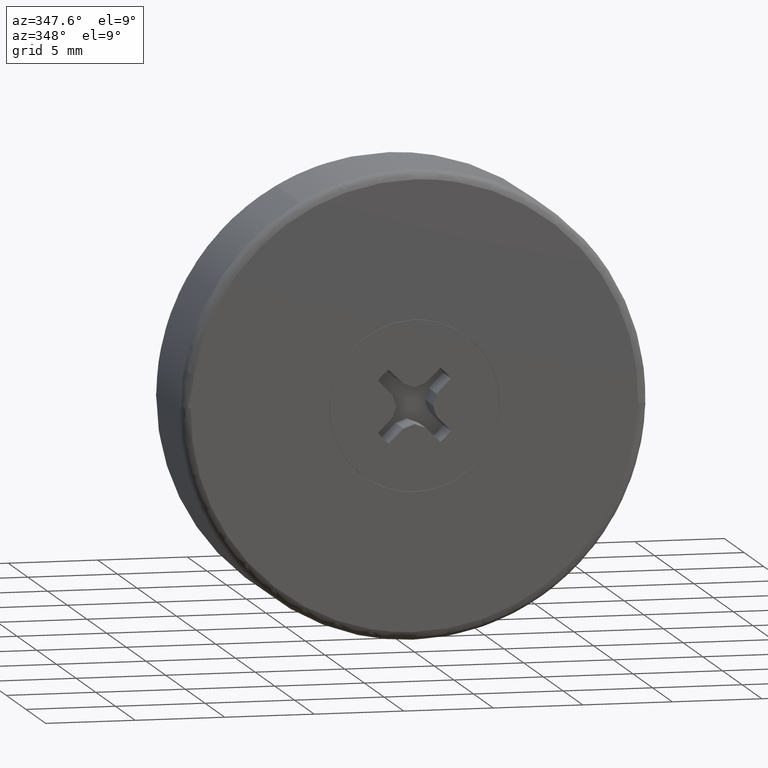
[diagram: clean part render]
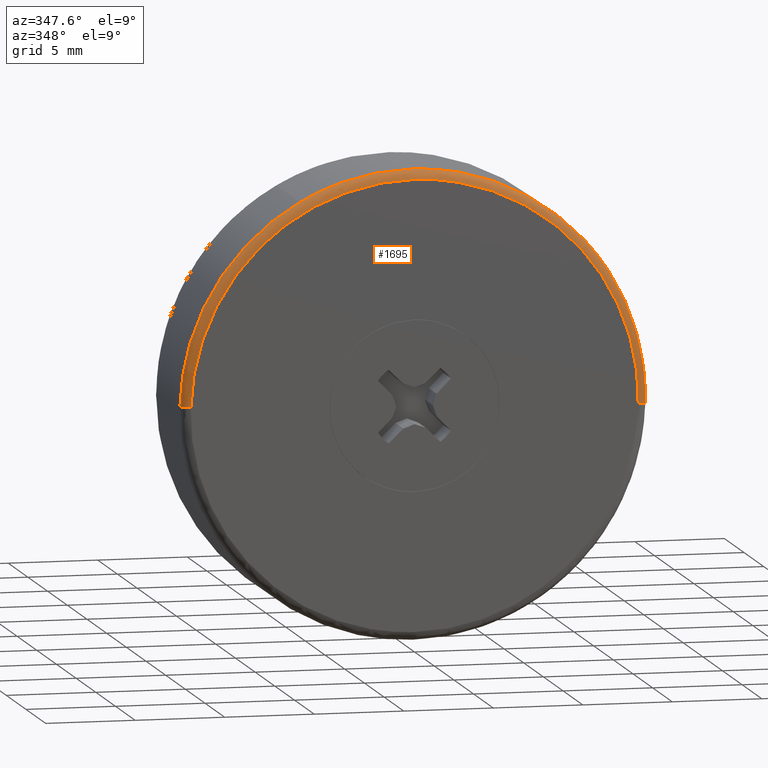
[diagram: same view with one face highlighted and labeled with its STEP entity id]
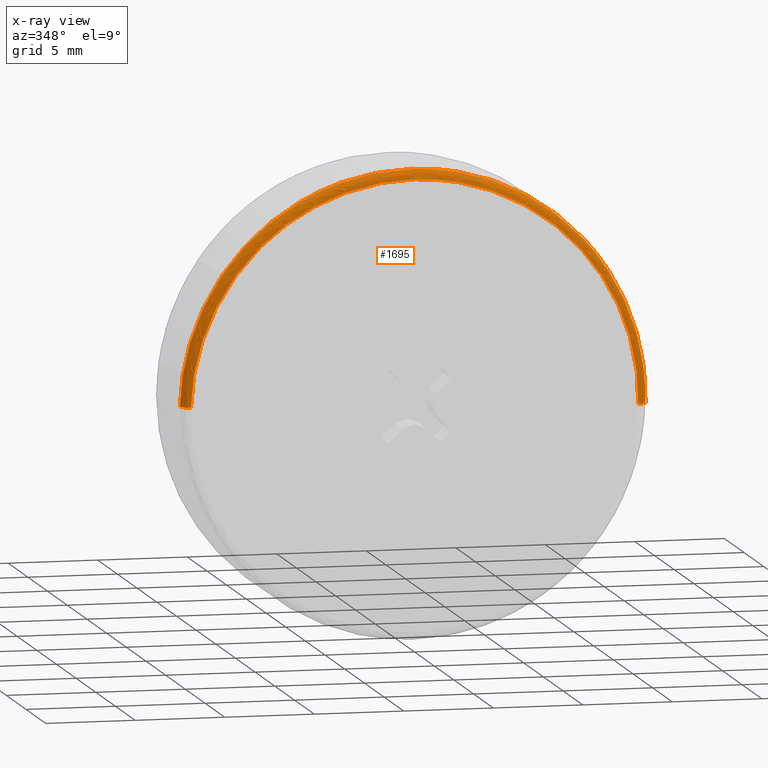
[diagram: x-ray of the same camera — body ghosted, the highlighted face saturated]
A machine part, auxiliary view. The second image highlights one B-rep face of the part: STEP entity #1695.
The next image is the same camera in x-ray: the body ghosted, the highlighted face saturated — about 0% of this face is hidden behind the body in this view.
In plain terms, the highlighted face is a freeform B-spline surface patch.
Its self-contained STEP definition (entity closure, byte-faithful):
#1328=CARTESIAN_POINT('',(-6.294854510387270,0.499999999997908,11.374304668552330));
#1329=VERTEX_POINT('',#1328);
#1330=CARTESIAN_POINT('',(-12.995894460682891,0.499999999983818,0.326691240763544));
#1331=VERTEX_POINT('',#1330);
#1332=CARTESIAN_POINT('',(-6.294854510387270,0.499999999997908,11.374304668552334));
#1333=CARTESIAN_POINT('',(-12.808801748854281,0.499999999993321,7.769306266508861));
#1334=CARTESIAN_POINT('',(-12.995894460682898,0.499999999983819,0.326691240763544));
#1342=(BOUNDED_CURVE()B_SPLINE_CURVE(2,(#1332,#1333,#1334),.UNSPECIFIED.,.F.,.U.)B_SPLINE_CURVE_WITH_KNOTS((3,3),(0.582484261791916,0.745579891769803),.UNSPECIFIED.)CURVE()GEOMETRIC_REPRESENTATION_ITEM()RATIONAL_B_SPLINE_CURVE((0.870495159113431,0.805504439765902,0.989826157681565))REPRESENTATION_ITEM(''));
#1343=EDGE_CURVE('',#1329,#1331,#1342,.T.);
#1414=CARTESIAN_POINT('',(9.584605856251752,0.500000000000005,8.782672177663475));
#1415=VERTEX_POINT('',#1414);
#1421=CARTESIAN_POINT('',(12.995894460682891,0.499999999983818,-0.326691240763541));
#1422=VERTEX_POINT('',#1421);
#1423=CARTESIAN_POINT('',(12.995894460682900,0.499999999983818,-0.326691240763541));
#1424=CARTESIAN_POINT('',(13.0,0.500000000000000,-0.163371417604090));
#1425=CARTESIAN_POINT('',(13.0,0.500000000000000,-1.904718E-016));
#1426=CARTESIAN_POINT('',(12.999999999999998,0.500000000000000,5.055422700038899));
#1427=CARTESIAN_POINT('',(9.584605856251752,0.500000000000005,8.782672177663475));
#1435=(BOUNDED_CURVE()B_SPLINE_CURVE(2,(#1423,#1424,#1425,#1426,#1427),.UNSPECIFIED.,.F.,.U.)B_SPLINE_CURVE_WITH_KNOTS((3,2,3),(0.245579891769803,0.250000000000000,0.368415192661570),.UNSPECIFIED.)CURVE()GEOMETRIC_REPRESENTATION_ITEM()RATIONAL_B_SPLINE_CURVE((0.989826157681567,0.994821521091815,1.0,0.861267972259750,0.853959782865036))REPRESENTATION_ITEM(''));
#1436=EDGE_CURVE('',#1422,#1415,#1435,.T.);
#1485=CARTESIAN_POINT('',(0.0,0.500000000000000,13.0));
#1486=VERTEX_POINT('',#1485);
#1487=CARTESIAN_POINT('',(0.0,0.500000000000000,13.0));
#1488=CARTESIAN_POINT('',(-3.357351512087067,0.500000000000000,13.0));
#1489=CARTESIAN_POINT('',(-6.294854510387270,0.499999999997908,11.374304668552334));
#1497=(BOUNDED_CURVE()B_SPLINE_CURVE(2,(#1487,#1488,#1489),.UNSPECIFIED.,.F.,.U.)B_SPLINE_CURVE_WITH_KNOTS((3,3),(0.500000000000000,0.582484261791916),.UNSPECIFIED.)CURVE()GEOMETRIC_REPRESENTATION_ITEM()RATIONAL_B_SPLINE_CURVE((1.0,0.903363676249257,0.870495159113431))REPRESENTATION_ITEM(''));
#1498=EDGE_CURVE('',#1486,#1329,#1497,.T.);
#1500=CARTESIAN_POINT('',(9.584605856251752,0.500000000000005,8.782672177663475));
#1501=CARTESIAN_POINT('',(5.720137745613223,0.500000000000000,13.000000000000004));
#1502=CARTESIAN_POINT('',(0.0,0.500000000000000,13.0));
#1510=(BOUNDED_CURVE()B_SPLINE_CURVE(2,(#1500,#1501,#1502),.UNSPECIFIED.,.F.,.U.)B_SPLINE_CURVE_WITH_KNOTS((3,3),(0.368415192661570,0.500000000000000),.UNSPECIFIED.)CURVE()GEOMETRIC_REPRESENTATION_ITEM()RATIONAL_B_SPLINE_CURVE((0.853959782865036,0.845838808926797,1.0))REPRESENTATION_ITEM(''));
#1511=EDGE_CURVE('',#1415,#1486,#1510,.T.);
#1569=CARTESIAN_POINT('',(-12.496052366380470,-1.054353E-015,0.314126193058411));
#1570=VERTEX_POINT('',#1569);
#1588=CARTESIAN_POINT('',(-12.995894460682900,0.499999999983819,0.326691240763544));
#1589=CARTESIAN_POINT('',(-12.995894460650545,6.790697E-010,0.326691240762575));
#1590=CARTESIAN_POINT('',(-12.496052366380475,-1.054353E-015,0.314126193058411));
#1598=(BOUNDED_CURVE()B_SPLINE_CURVE(2,(#1588,#1589,#1590),.UNSPECIFIED.,.F.,.U.)B_SPLINE_CURVE_WITH_KNOTS((3,3),(-1.723441281918127,-0.263586880333454),.UNSPECIFIED.)CURVE()GEOMETRIC_REPRESENTATION_ITEM()RATIONAL_B_SPLINE_CURVE((0.883897567115177,0.626638727497196,0.888510408558263))REPRESENTATION_ITEM(''));
#1599=EDGE_CURVE('',#1331,#1570,#1598,.T.);
#1603=CARTESIAN_POINT('',(12.496052366380470,-1.062163E-015,-0.314126193058408));
#1604=VERTEX_POINT('',#1603);
#1605=CARTESIAN_POINT('',(12.995894460682898,0.499999999983818,-0.326691240763541));
#1606=CARTESIAN_POINT('',(12.995894460650543,6.790686E-010,-0.326691240762573));
#1607=CARTESIAN_POINT('',(12.496052366380464,-1.062163E-015,-0.314126193058408));
#1615=(BOUNDED_CURVE()B_SPLINE_CURVE(2,(#1605,#1606,#1607),.UNSPECIFIED.,.F.,.U.)B_SPLINE_CURVE_WITH_KNOTS((3,3),(-1.723441281918127,-0.263586880333452),.UNSPECIFIED.)CURVE()GEOMETRIC_REPRESENTATION_ITEM()RATIONAL_B_SPLINE_CURVE((0.883897567115177,0.626638727497196,0.888510408558263))REPRESENTATION_ITEM(''));
#1616=EDGE_CURVE('',#1422,#1604,#1615,.T.);
#1634=CARTESIAN_POINT('',(12.994677997316831,0.534862113265929,-0.326660661265561));
#1635=CARTESIAN_POINT('',(13.321338658582397,0.534862113265929,12.668017336051275));
#1636=CARTESIAN_POINT('',(0.326660661265561,0.534862113265929,12.994677997316831));
#1637=CARTESIAN_POINT('',(-12.668017336051273,0.534862113265929,13.321338658582397));
#1638=CARTESIAN_POINT('',(-12.994677997316831,0.534862113265929,0.326660661265562));
#1639=CARTESIAN_POINT('',(13.034751864035522,-0.038668351976753,-0.327668039501828));
#1640=CARTESIAN_POINT('',(13.362419903537353,-0.038668351976753,12.707083824533695));
#1641=CARTESIAN_POINT('',(0.327668039501828,-0.038668351976753,13.034751864035522));
#1642=CARTESIAN_POINT('',(-12.707083824533692,-0.038668351976753,13.362419903537353));
#1643=CARTESIAN_POINT('',(-13.034751864035522,-0.038668351976753,0.327668039501829));
#1644=CARTESIAN_POINT('',(12.461387591115720,0.001203855233517,-0.313254788740500));
#1645=CARTESIAN_POINT('',(12.774642379856211,0.001203855233517,12.148132802375216));
#1646=CARTESIAN_POINT('',(0.313254788740501,0.001203855233517,12.461387591115720));
#1647=CARTESIAN_POINT('',(-12.148132802375212,0.001203855233517,12.774642379856214));
#1648=CARTESIAN_POINT('',(-12.461387591115720,0.001203855233517,0.313254788740502));
#1656=(BOUNDED_SURFACE()B_SPLINE_SURFACE(2,2,((#1634,#1639,#1644),(#1635,#1640,#1645),(#1636,#1641,#1646),(#1637,#1642,#1647),(#1638,#1643,#1648)),.UNSPECIFIED.,.F.,.F.,.U.)B_SPLINE_SURFACE_WITH_KNOTS((3,2,3),(3,3),(0.0,21.537089104185160,43.074178208370313),(0.0,0.911185718938869),.UNSPECIFIED.)GEOMETRIC_REPRESENTATION_ITEM()RATIONAL_B_SPLINE_SURFACE(((0.910892958713044,0.599412743202372,0.915966991455113),(0.644098588041071,0.423848815448028,0.647686471000951),(0.910892958713044,0.599412743202372,0.915966991455113),(0.644098588041071,0.423848815448028,0.647686471000951),(0.910892958713044,0.599412743202372,0.915966991455113)))REPRESENTATION_ITEM('')SURFACE());
#1657=CARTESIAN_POINT('',(0.0,-2.296137E-015,12.500000000000000));
#1658=VERTEX_POINT('',#1657);
#1659=CARTESIAN_POINT('',(0.0,-2.296137E-015,12.500000000000000));
#1660=CARTESIAN_POINT('',(-12.189723452242145,-2.296137E-015,12.500000000000000));
#1661=CARTESIAN_POINT('',(-12.496052366380473,-1.054353E-015,0.314126193058411));
#1669=(BOUNDED_CURVE()B_SPLINE_CURVE(2,(#1659,#1660,#1661),.UNSPECIFIED.,.F.,.U.)B_SPLINE_CURVE_WITH_KNOTS((3,3),(0.500000000000000,0.745579891769578),.UNSPECIFIED.)CURVE()GEOMETRIC_REPRESENTATION_ITEM()RATIONAL_B_SPLINE_CURVE((1.0,0.712285260094995,0.989826157681058))REPRESENTATION_ITEM(''));
#1670=EDGE_CURVE('',#1658,#1570,#1669,.T.);
#1671=ORIENTED_EDGE('',*,*,#1670,.F.);
#1672=CARTESIAN_POINT('',(12.496052366380473,-1.062163E-015,-0.314126193058408));
#1673=CARTESIAN_POINT('',(12.500000000000000,-2.296137E-015,-0.157087901550406));
#1674=CARTESIAN_POINT('',(12.500000000000000,-2.296137E-015,-1.904718E-016));
#1675=CARTESIAN_POINT('',(12.499999999999998,-2.296137E-015,12.499999999999998));
#1676=CARTESIAN_POINT('',(0.0,-2.296137E-015,12.500000000000000));
#1684=(BOUNDED_CURVE()B_SPLINE_CURVE(2,(#1672,#1673,#1674,#1675,#1676),.UNSPECIFIED.,.F.,.U.)B_SPLINE_CURVE_WITH_KNOTS((3,2,3),(0.245579891769579,0.250000000000000,0.500000000000000),.UNSPECIFIED.)CURVE()GEOMETRIC_REPRESENTATION_ITEM()RATIONAL_B_SPLINE_CURVE((0.989826157681060,0.994821521091553,1.0,0.707106781186547,1.0))REPRESENTATION_ITEM(''));
#1685=EDGE_CURVE('',#1604,#1658,#1684,.T.);
#1686=ORIENTED_EDGE('',*,*,#1685,.F.);
#1687=ORIENTED_EDGE('',*,*,#1616,.F.);
#1688=ORIENTED_EDGE('',*,*,#1436,.T.);
#1689=ORIENTED_EDGE('',*,*,#1511,.T.);
#1690=ORIENTED_EDGE('',*,*,#1498,.T.);
#1691=ORIENTED_EDGE('',*,*,#1343,.T.);
#1692=ORIENTED_EDGE('',*,*,#1599,.T.);
#1693=EDGE_LOOP('',(#1671,#1686,#1687,#1688,#1689,#1690,#1691,#1692));
#1694=FACE_OUTER_BOUND('',#1693,.T.);
#1695=ADVANCED_FACE('',(#1694),#1656,.T.);